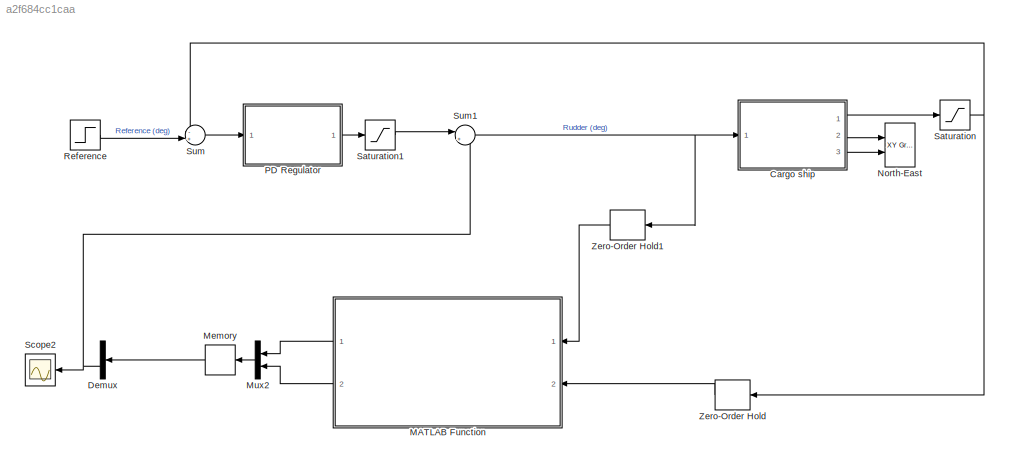
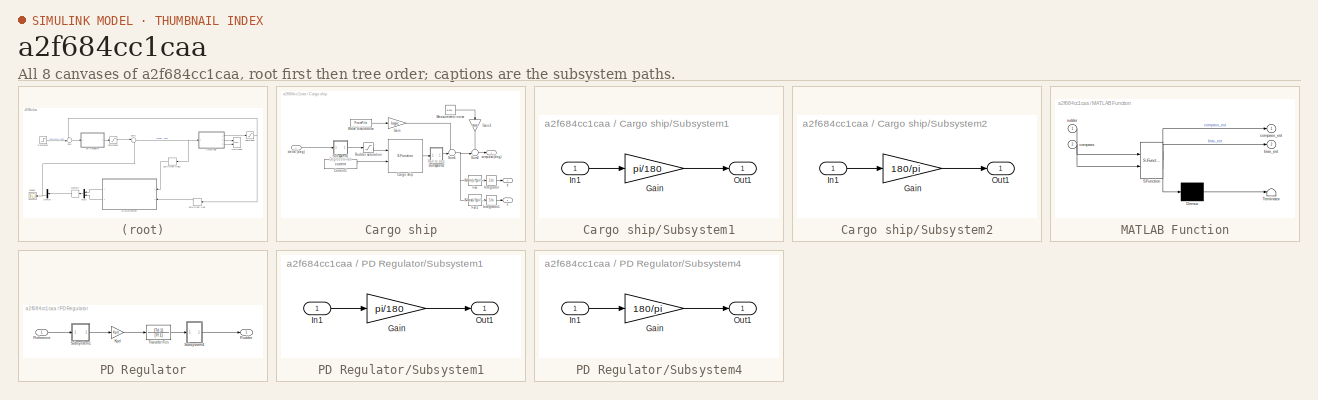
[diagram: thumbnail index - all 8 canvases of the model, root first then tree order]
MODEL slx_a2f684cc1caa
KIND model
CONFIG AbsTol = auto
CONFIG FixedStep = auto
CONFIG MaxStep = auto
CONFIG MinStep = auto
CONFIG RelTol = 1e-3
CONFIG SampleTimeConstraint = Unconstrained
CONFIG Solver = ode45
CONFIG SolverMode = SingleTasking
CONFIG SolverName = ode45
CONFIG StartTime = 0.0
CONFIG StopTime = 500
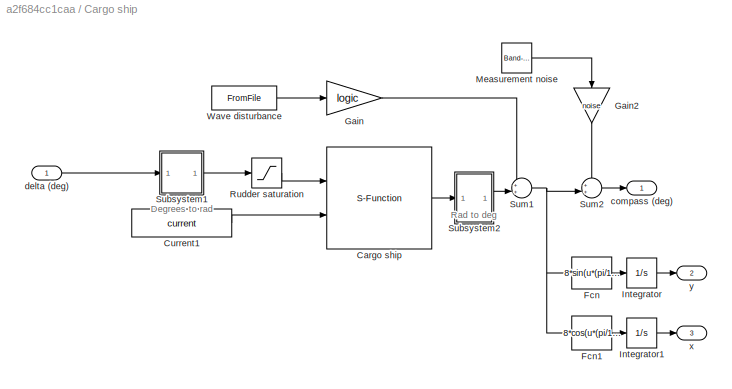
BLOCK [SubSystem] Cargo ship
  Ports = [1, 3]
  RequestExecContextInheritance = off
BLOCK [S-Function] Cargo ship/Cargo ship
  FunctionName = Cargoship
  Ports = [2, 1]
BLOCK [Constant] Cargo ship/Current1
  Value = current
BLOCK [Fcn] Cargo ship/Fcn
  Expr = 8*sin(u*(pi/180))
BLOCK [Fcn] Cargo ship/Fcn1
  Expr = 8*cos(u*(pi/180))
BLOCK [Gain] Cargo ship/Gain
  Gain = logic
BLOCK [Gain] Cargo ship/Gain2
  Gain = noise
BLOCK [Integrator] Cargo ship/Integrator
  Ports = [1, 1]
BLOCK [Integrator] Cargo ship/Integrator1
  Ports = [1, 1]
BLOCK [Reference] Cargo ship/Measurement noise  REF=simulink/Sources/Band-Limited
White Noise
  Cov = [0.001]
  Ports = [0, 1]
  SourceBlock = simulink/Sources/Band-Limited\nWhite Noise
  SourceType = Band-Limited White Noise.
  Ts = .5
  VectorParams1D = on
  seed = [23341]
BLOCK [Saturate] Cargo ship/Rudder saturation
  InputPortMap = u0
  LowerLimit = -45*(pi/180)
  Ports = [1, 1]
  UpperLimit = 45*(pi/180)
BLOCK [SubSystem] Cargo ship/Subsystem1
  Ports = [1, 1]
  RequestExecContextInheritance = off
BLOCK [Gain] Cargo ship/Subsystem1/Gain
  Gain = pi/180
BLOCK [Inport] Cargo ship/Subsystem1/In1
  IconDisplay = Port number
BLOCK [Outport] Cargo ship/Subsystem1/Out1
  IconDisplay = Port number
BLOCK [SubSystem] Cargo ship/Subsystem2
  Ports = [1, 1]
  RequestExecContextInheritance = off
BLOCK [Gain] Cargo ship/Subsystem2/Gain
  Gain = 180/pi
BLOCK [Inport] Cargo ship/Subsystem2/In1
  IconDisplay = Port number
BLOCK [Outport] Cargo ship/Subsystem2/Out1
  IconDisplay = Port number
BLOCK [Sum] Cargo ship/Sum1
  IconShape = round
  InputSameDT = off
  Inputs = ++|
  OutDataTypeStr = Inherit: Inherit via internal rule
  Ports = [2, 1]
BLOCK [Sum] Cargo ship/Sum2
  IconShape = round
  InputSameDT = off
  Inputs = ++|
  OutDataTypeStr = Inherit: Inherit via internal rule
  Ports = [2, 1]
BLOCK [FromFile] Cargo ship/Wave disturbance
  FileName = data_wave.mat
  SampleTime = 0
BLOCK [Outport] Cargo ship/compass (deg)
  IconDisplay = Port number
BLOCK [Inport] Cargo ship/delta (deg)
  IconDisplay = Port number
BLOCK [Outport] Cargo ship/x
  IconDisplay = Port number
  Port = 3
BLOCK [Outport] Cargo ship/y
  IconDisplay = Port number
  Port = 2
BLOCK [Demux] Demux
  DisplayOption = bar
  Outputs = 2
  Ports = [1, 2]
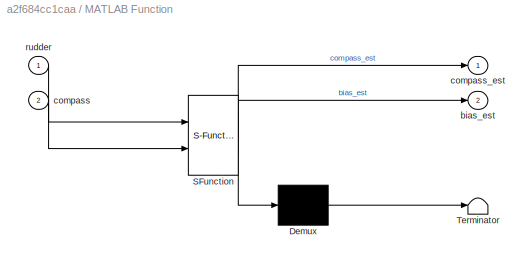
BLOCK [SubSystem] MATLAB Function
  ErrorFcn = Stateflow.Translate.translate
  PermitHierarchicalResolution = ExplicitOnly
  Ports = [2, 2]
  RequestExecContextInheritance = off
  SFBlockType = MATLAB Function
  TreatAsAtomicUnit = on
BLOCK [Demux] MATLAB Function/ Demux 
  Outputs = 1
  Ports = [1, 1]
BLOCK [S-Function] MATLAB Function/ SFunction 
  EnableBusSupport = on
  FunctionName = sf_sfun
  Parameters = A_d,B_d,C_d,E_d,P_0,Q,R
  PortCounts = [2 3]
  Ports = [2, 3]
  Tag = Stateflow S-Function model5MatlabFunction 2
BLOCK [Terminator] MATLAB Function/ Terminator 
BLOCK [Outport] MATLAB Function/bias_est
  IconDisplay = Port number
  Port = 2
BLOCK [Inport] MATLAB Function/compass
  IconDisplay = Port number
  Port = 2
BLOCK [Outport] MATLAB Function/compass_est
  IconDisplay = Port number
BLOCK [Inport] MATLAB Function/rudder
  IconDisplay = Port number
BLOCK [Memory] Memory
BLOCK [Mux] Mux2
  DisplayOption = bar
  Inputs = 2
  Ports = [2, 1]
BLOCK [Reference] North-East  REF=simulink/Sinks/XY Graph
  Ports = [2]
  SourceBlock = simulink/Sinks/XY Graph
  SourceType = XY scope.
  st = -1
  xmax = 5000
  xmin = -5000
  ymax = 5000
  ymin = -5000
BLOCK [SubSystem] PD Regulator
  Ports = [1, 1]
  RequestExecContextInheritance = off
BLOCK [Gain] PD Regulator/Kpd
  Gain = Kpd
  OutDataTypeStr = Inherit: Inherit via internal rule
  ParamDataTypeStr = Inherit: Inherit via internal rule
  SaturateOnIntegerOverflow = off
BLOCK [Inport] PD Regulator/Reference
  IconDisplay = Port number
BLOCK [Outport] PD Regulator/Rudder
  IconDisplay = Port number
BLOCK [SubSystem] PD Regulator/Subsystem1
  Ports = [1, 1]
  RequestExecContextInheritance = off
BLOCK [Gain] PD Regulator/Subsystem1/Gain
  Gain = pi/180
BLOCK [Inport] PD Regulator/Subsystem1/In1
  IconDisplay = Port number
BLOCK [Outport] PD Regulator/Subsystem1/Out1
  IconDisplay = Port number
BLOCK [SubSystem] PD Regulator/Subsystem4
  Ports = [1, 1]
  RequestExecContextInheritance = off
BLOCK [Gain] PD Regulator/Subsystem4/Gain
  Gain = 180/pi
BLOCK [Inport] PD Regulator/Subsystem4/In1
  IconDisplay = Port number
BLOCK [Outport] PD Regulator/Subsystem4/Out1
  IconDisplay = Port number
BLOCK [TransferFcn] PD Regulator/Transfer Fcn
  Denominator = [Tf 1]
  Numerator = [Td 1]
BLOCK [Step] Reference
  After = 30
  SampleTime = 0
BLOCK [Saturate] Saturation
  InputPortMap = u0
  LowerLimit = -35
  Ports = [1, 1]
  UpperLimit = 35
BLOCK [Saturate] Saturation1
  InputPortMap = u0
  LowerLimit = -45
  Ports = [1, 1]
  UpperLimit = 45
BLOCK [Scope] Scope2
  Floating = off
  LegendLocations = 0.56996     0.73361     0.31173    0.085077
  NumInputPorts = 1
  Ports = [1]
  SaveName = ScopeData2
  ShowLegends = on
  YMax = 0
  YMin = -175
BLOCK [Sum] Sum
  IconShape = round
  InputSameDT = off
  Inputs = -+|
  OutDataTypeStr = Inherit: Inherit via internal rule
  Ports = [2, 1]
  SaturateOnIntegerOverflow = off
BLOCK [Sum] Sum1
  IconShape = round
  InputSameDT = off
  Inputs = |++
  OutDataTypeStr = Inherit: Inherit via internal rule
  Ports = [2, 1]
  SaturateOnIntegerOverflow = off
BLOCK [ZeroOrderHold] Zero-Order Hold
  SampleTime = Ts
BLOCK [ZeroOrderHold] Zero-Order Hold1
  SampleTime = Ts
ANNOTATION Cargo ship: Degrees to rad
ANNOTATION Cargo ship: Rad to deg
LINE Cargo ship/Cargo ship:1 -> Cargo ship/Subsystem2:1
LINE Cargo ship/Current1:1 -> Cargo ship/Cargo ship:2
LINE Cargo ship/Fcn1:1 -> Cargo ship/Integrator1:1
LINE Cargo ship/Fcn:1 -> Cargo ship/Integrator:1
LINE Cargo ship/Gain2:1 -> Cargo ship/Sum2:1
LINE Cargo ship/Gain:1 -> Cargo ship/Sum1:1
LINE Cargo ship/Integrator1:1 -> Cargo ship/x:1
LINE Cargo ship/Integrator:1 -> Cargo ship/y:1
LINE Cargo ship/Measurement noise:1 -> Cargo ship/Gain2:1
LINE Cargo ship/Rudder saturation:1 -> Cargo ship/Cargo ship:1
LINE Cargo ship/Subsystem1/Gain:1 -> Cargo ship/Subsystem1/Out1:1
LINE Cargo ship/Subsystem1/In1:1 -> Cargo ship/Subsystem1/Gain:1
LINE Cargo ship/Subsystem1:1 -> Cargo ship/Rudder saturation:1
LINE Cargo ship/Subsystem2/Gain:1 -> Cargo ship/Subsystem2/Out1:1
LINE Cargo ship/Subsystem2/In1:1 -> Cargo ship/Subsystem2/Gain:1
LINE Cargo ship/Subsystem2:1 -> Cargo ship/Sum1:2
NET Cargo ship/Sum1:1 -> Cargo ship/Fcn1:1, Cargo ship/Fcn:1, Cargo ship/Sum2:2
LINE Cargo ship/Sum2:1 -> Cargo ship/compass (deg):1
LINE Cargo ship/Wave disturbance:1 -> Cargo ship/Gain:1
LINE Cargo ship/delta (deg):1 -> Cargo ship/Subsystem1:1
LINE Cargo ship:1 -> Saturation:1
LINE Cargo ship:2 -> North-East:1
LINE Cargo ship:3 -> North-East:2
NET Demux:2 -> Scope2:1, Sum1:2
LINE MATLAB Function:1 -> Mux2:1
LINE MATLAB Function:2 -> Mux2:2
LINE Memory:1 -> Demux:1
LINE Mux2:1 -> Memory:1
LINE PD Regulator/Kpd:1 -> PD Regulator/Transfer Fcn:1
LINE PD Regulator/Reference:1 -> PD Regulator/Subsystem1:1
LINE PD Regulator/Subsystem1/Gain:1 -> PD Regulator/Subsystem1/Out1:1
LINE PD Regulator/Subsystem1/In1:1 -> PD Regulator/Subsystem1/Gain:1
LINE PD Regulator/Subsystem1:1 -> PD Regulator/Kpd:1
LINE PD Regulator/Subsystem4/Gain:1 -> PD Regulator/Subsystem4/Out1:1
LINE PD Regulator/Subsystem4/In1:1 -> PD Regulator/Subsystem4/Gain:1
LINE PD Regulator/Subsystem4:1 -> PD Regulator/Rudder:1
LINE PD Regulator/Transfer Fcn:1 -> PD Regulator/Subsystem4:1
LINE PD Regulator:1 -> Saturation1:1
LINE Reference:1 -> Sum:2
LINE Saturation1:1 -> Sum1:1
NET Saturation:1 -> Sum:1, Zero-Order Hold:1
NET Sum1:1 -> Cargo ship:1, Zero-Order Hold1:1
LINE Sum:1 -> PD Regulator:1
LINE Zero-Order Hold1:1 -> MATLAB Function:1
LINE Zero-Order Hold:1 -> MATLAB Function:2
note: NET lines group one-source signal fan-out (src -> all destinations, sorted); 1:1 wires keep LINE
CHART MATLAB Function states=1 transitions=1
  STATE_LABEL 'eML_blk_kernel()'
  STATE_LABEL "SCRIPT:\n\nfunction [compass_est, bias_est] = Kalman(rudder,compass,A_d,B_d,C_d,E_d,R,Q,P_0)\n%#codegen\n\npersistent init_flag x_nextPri P_nextPri\n\nif isempty(init_flag)\n    init_flag = 1;\n    x_nextPri = [0;0;0;0;0];\n    P_nextPri = P_0;\nend\n\nI = eye(5);\n\nP_pri = P_nextPri;\nx_pri = x_nextPri;\n\nK_k =  P_pri*C_d'*inv(C_d*P_pri*C_d'+R);\n\nx_post = x_pri + K_k*(compass-C_d*x_pri);\n\nP_k = (I-K_k*C_d)*P_pri...<+150ch>"
